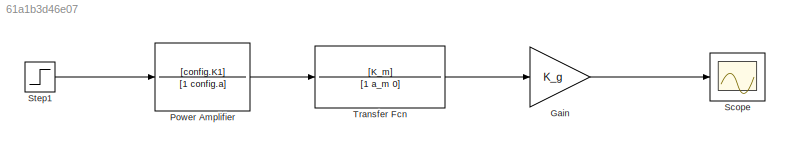
MODEL slx_61a1b3d46e07
KIND model
CONFIG AbsTol = auto
CONFIG EnableMultiTasking = off
CONFIG FixedStep = auto
CONFIG MaxStep = auto
CONFIG MinStep = auto
CONFIG RelTol = 1e-3
CONFIG SampleTimeConstraint = Unconstrained
CONFIG SolverName = VariableStepAuto
CONFIG StartTime = 0.0
CONFIG StopTime = 10.0
BLOCK [Gain] Gain
  Gain = K_g
BLOCK [TransferFcn] Power Amplifier
  Denominator = [1 config.a]
  Numerator = [config.K1]
BLOCK [Scope] Scope
  Floating = off
  NumInputPorts = 1
  ScopeSpecificationString = Simulink.scopes.TimeScopeBlockCfg('CurrentConfiguration', extmgr.ConfigurationSet(extmgr.Configuration('Core','General UI',true),extmgr.Configuration('Core','Source UI',true),extmgr.Configuration('Sources','WiredSimulink',true),extmgr.Configuration('Visuals','Time Domain',true,'SerializedDisplays',{struct('MinYLimReal','-477.07436','MaxYLimReal','4293.66921','YLabelReal','','MinYLimMag',' 0.00000'...<+1372ch>
BLOCK [Step] Step1
  SampleTime = 0
BLOCK [TransferFcn] Transfer Fcn
  Denominator = [1 a_m 0]
  Numerator = [K_m]
LINE Gain:1 -> Scope:1
LINE Power Amplifier:1 -> Transfer Fcn:1
LINE Step1:1 -> Power Amplifier:1
LINE Transfer Fcn:1 -> Gain:1
